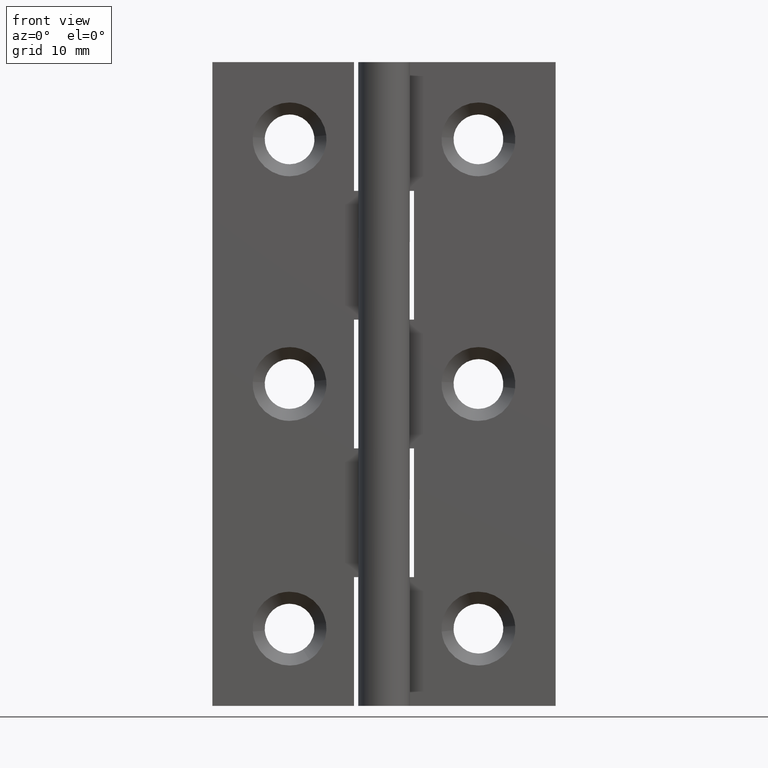
[diagram: clean part render]
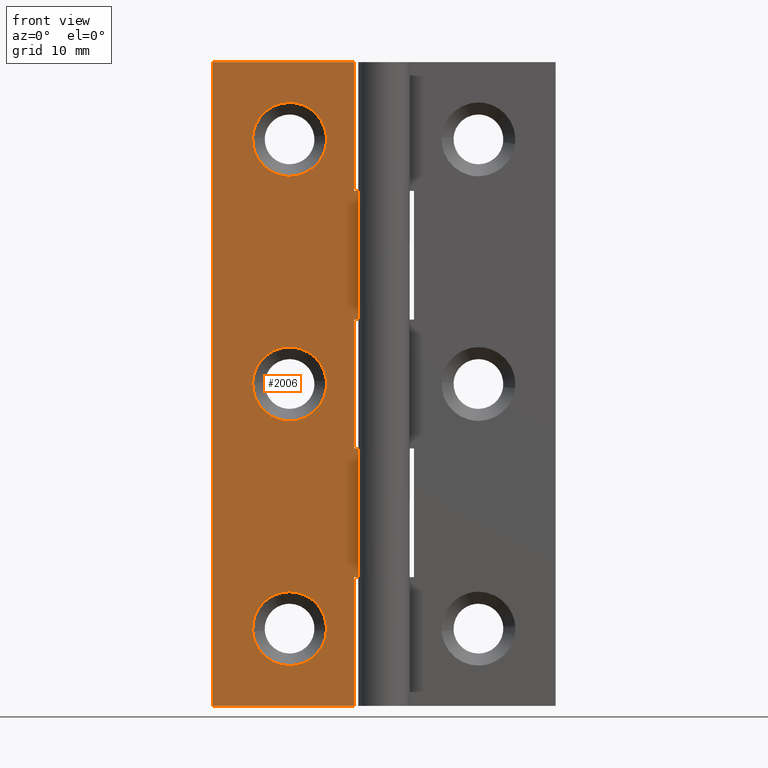
[diagram: same view with one face highlighted and labeled with its STEP entity id]
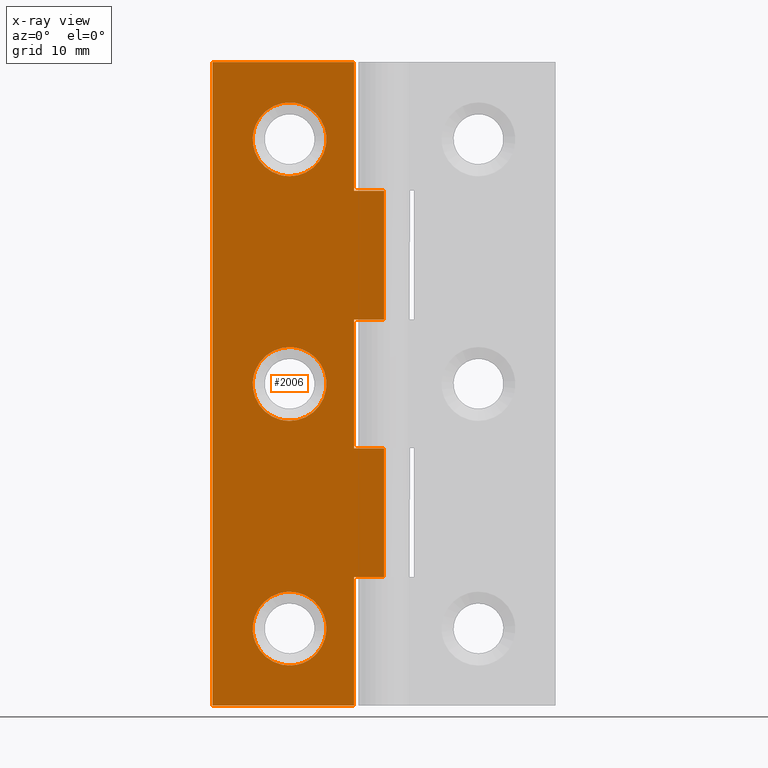
[diagram: x-ray of the same camera — body ghosted, the highlighted face saturated]
A machine part, front view. The second image highlights one B-rep face of the part: STEP entity #2006.
The next image is the same camera in x-ray: the body ghosted, the highlighted face saturated — about 0% of this face is hidden behind the body in this view.
In plain terms, the highlighted face is a freeform B-spline surface patch.
Its self-contained STEP definition (entity closure, byte-faithful):
#330=CARTESIAN_POINT('',(-6.728082468202308,1.499999999970754,66.490632858429848));
#331=VERTEX_POINT('',#330);
#337=CARTESIAN_POINT('',(-11.0,1.500000000000000,70.299999999999997));
#338=VERTEX_POINT('',#337);
#339=CARTESIAN_POINT('',(-6.728082468202308,1.499999999970755,66.490632858429848));
#340=CARTESIAN_POINT('',(-7.165591075486293,1.500000000000000,70.299999999999997));
#341=CARTESIAN_POINT('',(-11.0,1.500000000000000,70.299999999999997));
#349=(BOUNDED_CURVE()B_SPLINE_CURVE(2,(#339,#340,#341),.UNSPECIFIED.,.F.,.U.)B_SPLINE_CURVE_WITH_KNOTS((3,3),(0.269767755880013,0.500000000000000),.UNSPECIFIED.)CURVE()GEOMETRIC_REPRESENTATION_ITEM()RATIONAL_B_SPLINE_CURVE((0.957343736453950,0.730266147780209,1.0))REPRESENTATION_ITEM(''));
#350=EDGE_CURVE('',#331,#338,#349,.T.);
#352=CARTESIAN_POINT('',(-15.291979633218290,1.499999999994760,66.262508720016001));
#353=VERTEX_POINT('',#352);
#354=CARTESIAN_POINT('',(-11.0,1.500000000000000,70.299999999999997));
#355=CARTESIAN_POINT('',(-15.045036087664627,1.500000000000000,70.299999999999983));
#356=CARTESIAN_POINT('',(-15.291979633218290,1.499999999994760,66.262508720016001));
#364=(BOUNDED_CURVE()B_SPLINE_CURVE(2,(#354,#355,#356),.UNSPECIFIED.,.F.,.U.)B_SPLINE_CURVE_WITH_KNOTS((3,3),(0.500000000000000,0.739332962240697),.UNSPECIFIED.)CURVE()GEOMETRIC_REPRESENTATION_ITEM()RATIONAL_B_SPLINE_CURVE((1.0,0.719603993284655,0.976072041670477))REPRESENTATION_ITEM(''));
#365=EDGE_CURVE('',#338,#353,#364,.T.);
#460=CARTESIAN_POINT('',(-11.0,1.500000000000000,61.700000000000003));
#461=VERTEX_POINT('',#460);
#462=CARTESIAN_POINT('',(-15.291979633218293,1.499999999994760,66.262508720016001));
#463=CARTESIAN_POINT('',(-15.300000000000001,1.500000000000000,66.131376882199788));
#464=CARTESIAN_POINT('',(-15.300000000000001,1.500000000000000,66.0));
#465=CARTESIAN_POINT('',(-15.300000000000006,1.500000000000000,61.700000000000017));
#466=CARTESIAN_POINT('',(-11.0,1.500000000000000,61.700000000000003));
#474=(BOUNDED_CURVE()B_SPLINE_CURVE(2,(#462,#463,#464,#465,#466),.UNSPECIFIED.,.F.,.U.)B_SPLINE_CURVE_WITH_KNOTS((3,2,3),(0.739332962240697,0.750000000000000,1.0),.UNSPECIFIED.)CURVE()GEOMETRIC_REPRESENTATION_ITEM()RATIONAL_B_SPLINE_CURVE((0.976072041670478,0.987502787901893,1.0,0.707106781186547,1.0))REPRESENTATION_ITEM(''));
#475=EDGE_CURVE('',#353,#461,#474,.T.);
#477=CARTESIAN_POINT('',(-11.0,1.500000000000000,61.700000000000003));
#478=CARTESIAN_POINT('',(-6.700000000000000,1.500000000000000,61.700000000000017));
#479=CARTESIAN_POINT('',(-6.699999999999999,1.500000000000000,66.0));
#480=CARTESIAN_POINT('',(-6.699999999999998,1.500000000000000,66.246120110652129));
#481=CARTESIAN_POINT('',(-6.728082468202308,1.499999999970755,66.490632858429848));
#489=(BOUNDED_CURVE()B_SPLINE_CURVE(2,(#477,#478,#479,#480,#481),.UNSPECIFIED.,.F.,.U.)B_SPLINE_CURVE_WITH_KNOTS((3,2,3),(0.0,0.250000000000000,0.269767755880013),.UNSPECIFIED.)CURVE()GEOMETRIC_REPRESENTATION_ITEM()RATIONAL_B_SPLINE_CURVE((1.0,0.707106781186547,1.0,0.976840633406338,0.957343736453950))REPRESENTATION_ITEM(''));
#490=EDGE_CURVE('',#461,#331,#489,.T.);
#658=CARTESIAN_POINT('',(-6.728082468202308,1.499999999970754,37.990632858429848));
#659=VERTEX_POINT('',#658);
#665=CARTESIAN_POINT('',(-11.0,1.500000000000000,41.799999999999997));
#666=VERTEX_POINT('',#665);
#667=CARTESIAN_POINT('',(-6.728082468202308,1.499999999970754,37.990632858429848));
#668=CARTESIAN_POINT('',(-7.165591075486291,1.500000000000000,41.799999999999990));
#669=CARTESIAN_POINT('',(-11.0,1.500000000000000,41.799999999999997));
#677=(BOUNDED_CURVE()B_SPLINE_CURVE(2,(#667,#668,#669),.UNSPECIFIED.,.F.,.U.)B_SPLINE_CURVE_WITH_KNOTS((3,3),(0.269767755880013,0.500000000000000),.UNSPECIFIED.)CURVE()GEOMETRIC_REPRESENTATION_ITEM()RATIONAL_B_SPLINE_CURVE((0.957343736453950,0.730266147780209,1.0))REPRESENTATION_ITEM(''));
#678=EDGE_CURVE('',#659,#666,#677,.T.);
#680=CARTESIAN_POINT('',(-15.291979633218290,1.499999999994760,37.762508720016022));
#681=VERTEX_POINT('',#680);
#682=CARTESIAN_POINT('',(-11.0,1.500000000000000,41.799999999999997));
#683=CARTESIAN_POINT('',(-15.045036087664627,1.500000000000000,41.799999999999997));
#684=CARTESIAN_POINT('',(-15.291979633218290,1.499999999994761,37.762508720016022));
#692=(BOUNDED_CURVE()B_SPLINE_CURVE(2,(#682,#683,#684),.UNSPECIFIED.,.F.,.U.)B_SPLINE_CURVE_WITH_KNOTS((3,3),(0.500000000000000,0.739332962240697),.UNSPECIFIED.)CURVE()GEOMETRIC_REPRESENTATION_ITEM()RATIONAL_B_SPLINE_CURVE((1.0,0.719603993284655,0.976072041670477))REPRESENTATION_ITEM(''));
#693=EDGE_CURVE('',#666,#681,#692,.T.);
#788=CARTESIAN_POINT('',(-11.0,1.500000000000000,33.200000000000003));
#789=VERTEX_POINT('',#788);
#790=CARTESIAN_POINT('',(-15.291979633218286,1.499999999994761,37.762508720016029));
#791=CARTESIAN_POINT('',(-15.299999999999999,1.500000000000000,37.631376882199802));
#792=CARTESIAN_POINT('',(-15.300000000000001,1.500000000000000,37.500000000000000));
#793=CARTESIAN_POINT('',(-15.300000000000006,1.500000000000000,33.200000000000010));
#794=CARTESIAN_POINT('',(-11.0,1.500000000000000,33.200000000000003));
#802=(BOUNDED_CURVE()B_SPLINE_CURVE(2,(#790,#791,#792,#793,#794),.UNSPECIFIED.,.F.,.U.)B_SPLINE_CURVE_WITH_KNOTS((3,2,3),(0.739332962240696,0.750000000000000,1.0),.UNSPECIFIED.)CURVE()GEOMETRIC_REPRESENTATION_ITEM()RATIONAL_B_SPLINE_CURVE((0.976072041670475,0.987502787901892,1.0,0.707106781186547,1.0))REPRESENTATION_ITEM(''));
#803=EDGE_CURVE('',#681,#789,#802,.T.);
#805=CARTESIAN_POINT('',(-11.0,1.500000000000000,33.200000000000003));
#806=CARTESIAN_POINT('',(-6.700000000000000,1.500000000000000,33.200000000000010));
#807=CARTESIAN_POINT('',(-6.699999999999999,1.500000000000000,37.500000000000000));
#808=CARTESIAN_POINT('',(-6.699999999999998,1.500000000000000,37.746120110652136));
#809=CARTESIAN_POINT('',(-6.728082468202308,1.499999999970753,37.990632858429841));
#817=(BOUNDED_CURVE()B_SPLINE_CURVE(2,(#805,#806,#807,#808,#809),.UNSPECIFIED.,.F.,.U.)B_SPLINE_CURVE_WITH_KNOTS((3,2,3),(0.0,0.250000000000000,0.269767755880013),.UNSPECIFIED.)CURVE()GEOMETRIC_REPRESENTATION_ITEM()RATIONAL_B_SPLINE_CURVE((1.0,0.707106781186547,1.0,0.976840633406338,0.957343736453950))REPRESENTATION_ITEM(''));
#818=EDGE_CURVE('',#789,#659,#817,.T.);
#992=CARTESIAN_POINT('',(-8.687241587997228,1.499999999988787,5.374927789987233));
#993=VERTEX_POINT('',#992);
#999=CARTESIAN_POINT('',(-11.0,1.500000000000000,13.300000000000001));
#1000=VERTEX_POINT('',#999);
#1001=CARTESIAN_POINT('',(-11.0,1.500000000000000,13.300000000000001));
#1002=CARTESIAN_POINT('',(-6.700000000000000,1.500000000000000,13.300000000000001));
#1003=CARTESIAN_POINT('',(-6.699999999999999,1.500000000000000,9.0));
#1004=CARTESIAN_POINT('',(-6.700000000000000,1.500000000000000,6.642767279411435));
#1005=CARTESIAN_POINT('',(-8.687241587997228,1.499999999988787,5.374927789987233));
#1013=(BOUNDED_CURVE()B_SPLINE_CURVE(2,(#1001,#1002,#1003,#1004,#1005),.UNSPECIFIED.,.F.,.U.)B_SPLINE_CURVE_WITH_KNOTS((3,2,3),(0.0,0.250000000000000,0.407950112612570),.UNSPECIFIED.)CURVE()GEOMETRIC_REPRESENTATION_ITEM()RATIONAL_B_SPLINE_CURVE((1.0,0.707106781186547,1.0,0.814949932419829,0.863729296945671))REPRESENTATION_ITEM(''));
#1014=EDGE_CURVE('',#1000,#993,#1013,.T.);
#1016=CARTESIAN_POINT('',(-15.286744535061599,1.499999999977244,8.662625888196475));
#1017=VERTEX_POINT('',#1016);
#1018=CARTESIAN_POINT('',(-15.286744535061601,1.499999999977244,8.662625888196475));
#1019=CARTESIAN_POINT('',(-15.300000000000006,1.500000000000000,8.831052539694216));
#1020=CARTESIAN_POINT('',(-15.300000000000001,1.500000000000000,9.0));
#1021=CARTESIAN_POINT('',(-15.300000000000006,1.500000000000000,13.300000000000001));
#1022=CARTESIAN_POINT('',(-11.0,1.500000000000000,13.300000000000001));
#1030=(BOUNDED_CURVE()B_SPLINE_CURVE(2,(#1018,#1019,#1020,#1021,#1022),.UNSPECIFIED.,.F.,.U.)B_SPLINE_CURVE_WITH_KNOTS((3,2,3),(0.736331300619010,0.750000000000000,1.0),.UNSPECIFIED.)CURVE()GEOMETRIC_REPRESENTATION_ITEM()RATIONAL_B_SPLINE_CURVE((0.969723356143106,0.983986122565234,1.0,0.707106781186547,1.0))REPRESENTATION_ITEM(''));
#1031=EDGE_CURVE('',#1017,#1000,#1030,.T.);
#1135=CARTESIAN_POINT('',(-11.0,1.500000000000000,4.699999999999999));
#1136=VERTEX_POINT('',#1135);
#1137=CARTESIAN_POINT('',(-11.0,1.500000000000000,4.699999999999999));
#1138=CARTESIAN_POINT('',(-14.974879113810324,1.500000000000000,4.700000000000000));
#1139=CARTESIAN_POINT('',(-15.286744535061599,1.499999999977244,8.662625888196475));
#1147=(BOUNDED_CURVE()B_SPLINE_CURVE(2,(#1137,#1138,#1139),.UNSPECIFIED.,.F.,.U.)B_SPLINE_CURVE_WITH_KNOTS((3,3),(0.500000000000000,0.736331300619010),.UNSPECIFIED.)CURVE()GEOMETRIC_REPRESENTATION_ITEM()RATIONAL_B_SPLINE_CURVE((1.0,0.723120658621313,0.969723356143107))REPRESENTATION_ITEM(''));
#1148=EDGE_CURVE('',#1136,#1017,#1147,.T.);
#1150=CARTESIAN_POINT('',(-8.687241587997228,1.499999999988787,5.374927789987233));
#1151=CARTESIAN_POINT('',(-9.745139361639955,1.500000000000000,4.699999999999999));
#1152=CARTESIAN_POINT('',(-11.0,1.500000000000000,4.699999999999999));
#1160=(BOUNDED_CURVE()B_SPLINE_CURVE(2,(#1150,#1151,#1152),.UNSPECIFIED.,.F.,.U.)B_SPLINE_CURVE_WITH_KNOTS((3,3),(0.407950112612570,0.500000000000000),.UNSPECIFIED.)CURVE()GEOMETRIC_REPRESENTATION_ITEM()RATIONAL_B_SPLINE_CURVE((0.863729296945671,0.892156848766719,1.0))REPRESENTATION_ITEM(''));
#1161=EDGE_CURVE('',#993,#1136,#1160,.T.);
#1300=CARTESIAN_POINT('',(-3.500000000000000,1.499999999999946,30.0));
#1301=VERTEX_POINT('',#1300);
#1316=CARTESIAN_POINT('',(-3.500000000000000,1.499999999999946,45.0));
#1317=VERTEX_POINT('',#1316);
#1323=CARTESIAN_POINT('',(-3.500000000000000,1.499999999999946,30.0));
#1324=CARTESIAN_POINT('',(-3.500000000000000,1.499999999999946,45.0));
#1325=QUASI_UNIFORM_CURVE('',1,(#1323,#1324),.UNSPECIFIED.,.F.,.U.);
#1326=EDGE_CURVE('',#1301,#1317,#1325,.T.);
#1372=CARTESIAN_POINT('',(-2.755364E-016,1.500000000000000,45.0));
#1373=VERTEX_POINT('',#1372);
#1393=CARTESIAN_POINT('',(-3.500000000000000,1.499999999999946,45.0));
#1394=CARTESIAN_POINT('',(-2.755364E-016,1.500000000000000,45.0));
#1395=QUASI_UNIFORM_CURVE('',1,(#1393,#1394),.UNSPECIFIED.,.F.,.U.);
#1396=EDGE_CURVE('',#1317,#1373,#1395,.T.);
#1408=CARTESIAN_POINT('',(-2.755364E-016,1.500000000000000,30.0));
#1409=VERTEX_POINT('',#1408);
#1463=CARTESIAN_POINT('',(-2.755364E-016,1.500000000000000,30.0));
#1464=CARTESIAN_POINT('',(-3.500000000000000,1.499999999999946,30.0));
#1465=QUASI_UNIFORM_CURVE('',1,(#1463,#1464),.UNSPECIFIED.,.F.,.U.);
#1466=EDGE_CURVE('',#1409,#1301,#1465,.T.);
#1476=CARTESIAN_POINT('',(-3.500000000000000,1.500000000000000,0.0));
#1477=VERTEX_POINT('',#1476);
#1492=CARTESIAN_POINT('',(-3.500000000000000,1.499999999999946,15.0));
#1493=VERTEX_POINT('',#1492);
#1499=CARTESIAN_POINT('',(-3.500000000000000,1.500000000000000,0.0));
#1500=CARTESIAN_POINT('',(-3.500000000000000,1.499999999999946,15.0));
#1501=QUASI_UNIFORM_CURVE('',1,(#1499,#1500),.UNSPECIFIED.,.F.,.U.);
#1502=EDGE_CURVE('',#1477,#1493,#1501,.T.);
#1548=CARTESIAN_POINT('',(-2.755364E-016,1.500000000000000,15.0));
#1549=VERTEX_POINT('',#1548);
#1569=CARTESIAN_POINT('',(-3.500000000000000,1.499999999999946,15.0));
#1570=CARTESIAN_POINT('',(-2.755364E-016,1.500000000000000,15.0));
#1571=QUASI_UNIFORM_CURVE('',1,(#1569,#1570),.UNSPECIFIED.,.F.,.U.);
#1572=EDGE_CURVE('',#1493,#1549,#1571,.T.);
#1582=CARTESIAN_POINT('',(-3.500000000000000,1.499999999999946,60.0));
#1583=VERTEX_POINT('',#1582);
#1598=CARTESIAN_POINT('',(-3.500000000000000,1.499999999999946,75.0));
#1599=VERTEX_POINT('',#1598);
#1605=CARTESIAN_POINT('',(-3.500000000000000,1.499999999999946,60.0));
#1606=CARTESIAN_POINT('',(-3.500000000000000,1.499999999999946,75.0));
#1607=QUASI_UNIFORM_CURVE('',1,(#1605,#1606),.UNSPECIFIED.,.F.,.U.);
#1608=EDGE_CURVE('',#1583,#1599,#1607,.T.);
#1620=CARTESIAN_POINT('',(-2.755364E-016,1.500000000000000,60.0));
#1621=VERTEX_POINT('',#1620);
#1675=CARTESIAN_POINT('',(-2.755364E-016,1.500000000000000,60.0));
#1676=CARTESIAN_POINT('',(-3.500000000000000,1.499999999999946,60.0));
#1677=QUASI_UNIFORM_CURVE('',1,(#1675,#1676),.UNSPECIFIED.,.F.,.U.);
#1678=EDGE_CURVE('',#1621,#1583,#1677,.T.);
#1690=CARTESIAN_POINT('',(-20.0,1.500000000000000,75.0));
#1691=VERTEX_POINT('',#1690);
#1704=CARTESIAN_POINT('',(-20.0,1.500000000000000,0.0));
#1705=VERTEX_POINT('',#1704);
#1711=CARTESIAN_POINT('',(-20.0,1.500000000000000,0.0));
#1712=CARTESIAN_POINT('',(-20.0,1.500000000000000,75.0));
#1713=QUASI_UNIFORM_CURVE('',1,(#1711,#1712),.UNSPECIFIED.,.F.,.U.);
#1714=EDGE_CURVE('',#1705,#1691,#1713,.T.);
#1731=CARTESIAN_POINT('',(-20.0,1.500000000000000,75.0));
#1732=CARTESIAN_POINT('',(-3.500000000000000,1.499999999999946,75.0));
#1733=QUASI_UNIFORM_CURVE('',1,(#1731,#1732),.UNSPECIFIED.,.F.,.U.);
#1734=EDGE_CURVE('',#1691,#1599,#1733,.T.);
#1750=CARTESIAN_POINT('',(-20.0,1.500000000000000,0.0));
#1751=CARTESIAN_POINT('',(-3.500000000000000,1.500000000000000,0.0));
#1752=QUASI_UNIFORM_CURVE('',1,(#1750,#1751),.UNSPECIFIED.,.F.,.U.);
#1753=EDGE_CURVE('',#1705,#1477,#1752,.T.);
#1925=CARTESIAN_POINT('',(-2.755364E-016,1.500000000000000,45.0));
#1926=CARTESIAN_POINT('',(-2.755364E-016,1.500000000000000,60.0));
#1927=QUASI_UNIFORM_CURVE('',1,(#1925,#1926),.UNSPECIFIED.,.F.,.U.);
#1928=EDGE_CURVE('',#1373,#1621,#1927,.T.);
#1960=CARTESIAN_POINT('',(-2.755364E-016,1.500000000000000,15.0));
#1961=CARTESIAN_POINT('',(-2.755364E-016,1.500000000000000,30.0));
#1962=QUASI_UNIFORM_CURVE('',1,(#1960,#1961),.UNSPECIFIED.,.F.,.U.);
#1963=EDGE_CURVE('',#1549,#1409,#1962,.T.);
#1969=CARTESIAN_POINT('',(-20.998999961236120,1.500000000000000,78.746249854635451));
#1970=CARTESIAN_POINT('',(-20.998999961236120,1.500000000000000,-3.746251866292208));
#1971=CARTESIAN_POINT('',(0.999000497677922,1.500000000000000,78.746249854635451));
#1972=CARTESIAN_POINT('',(0.999000497677922,1.500000000000000,-3.746251866292208));
#1973=B_SPLINE_SURFACE_WITH_KNOTS('',1,1,((#1969,#1971),(#1970,#1972)),.UNSPECIFIED.,.F.,.F.,.U.,(2,2),(2,2),(0.0,82.492501720927663),(0.0,21.998000458914039),.UNSPECIFIED.);
#1974=ORIENTED_EDGE('',*,*,#1963,.T.);
#1975=ORIENTED_EDGE('',*,*,#1466,.T.);
#1976=ORIENTED_EDGE('',*,*,#1326,.T.);
#1977=ORIENTED_EDGE('',*,*,#1396,.T.);
#1978=ORIENTED_EDGE('',*,*,#1928,.T.);
#1979=ORIENTED_EDGE('',*,*,#1678,.T.);
#1980=ORIENTED_EDGE('',*,*,#1608,.T.);
#1981=ORIENTED_EDGE('',*,*,#1734,.F.);
#1982=ORIENTED_EDGE('',*,*,#1714,.F.);
#1983=ORIENTED_EDGE('',*,*,#1753,.T.);
#1984=ORIENTED_EDGE('',*,*,#1502,.T.);
#1985=ORIENTED_EDGE('',*,*,#1572,.T.);
#1986=EDGE_LOOP('',(#1974,#1975,#1976,#1977,#1978,#1979,#1980,#1981,#1982,#1983,#1984,#1985));
#1987=FACE_OUTER_BOUND('',#1986,.T.);
#1988=ORIENTED_EDGE('',*,*,#1148,.T.);
#1989=ORIENTED_EDGE('',*,*,#1031,.T.);
#1990=ORIENTED_EDGE('',*,*,#1014,.T.);
#1991=ORIENTED_EDGE('',*,*,#1161,.T.);
#1992=EDGE_LOOP('',(#1988,#1989,#1990,#1991));
#1993=FACE_BOUND('',#1992,.T.);
#1994=ORIENTED_EDGE('',*,*,#693,.F.);
#1995=ORIENTED_EDGE('',*,*,#678,.F.);
#1996=ORIENTED_EDGE('',*,*,#818,.F.);
#1997=ORIENTED_EDGE('',*,*,#803,.F.);
#1998=EDGE_LOOP('',(#1994,#1995,#1996,#1997));
#1999=FACE_BOUND('',#1998,.T.);
#2000=ORIENTED_EDGE('',*,*,#365,.F.);
#2001=ORIENTED_EDGE('',*,*,#350,.F.);
#2002=ORIENTED_EDGE('',*,*,#490,.F.);
#2003=ORIENTED_EDGE('',*,*,#475,.F.);
#2004=EDGE_LOOP('',(#2000,#2001,#2002,#2003));
#2005=FACE_BOUND('',#2004,.T.);
#2006=ADVANCED_FACE('',(#1987,#1993,#1999,#2005),#1973,.T.);